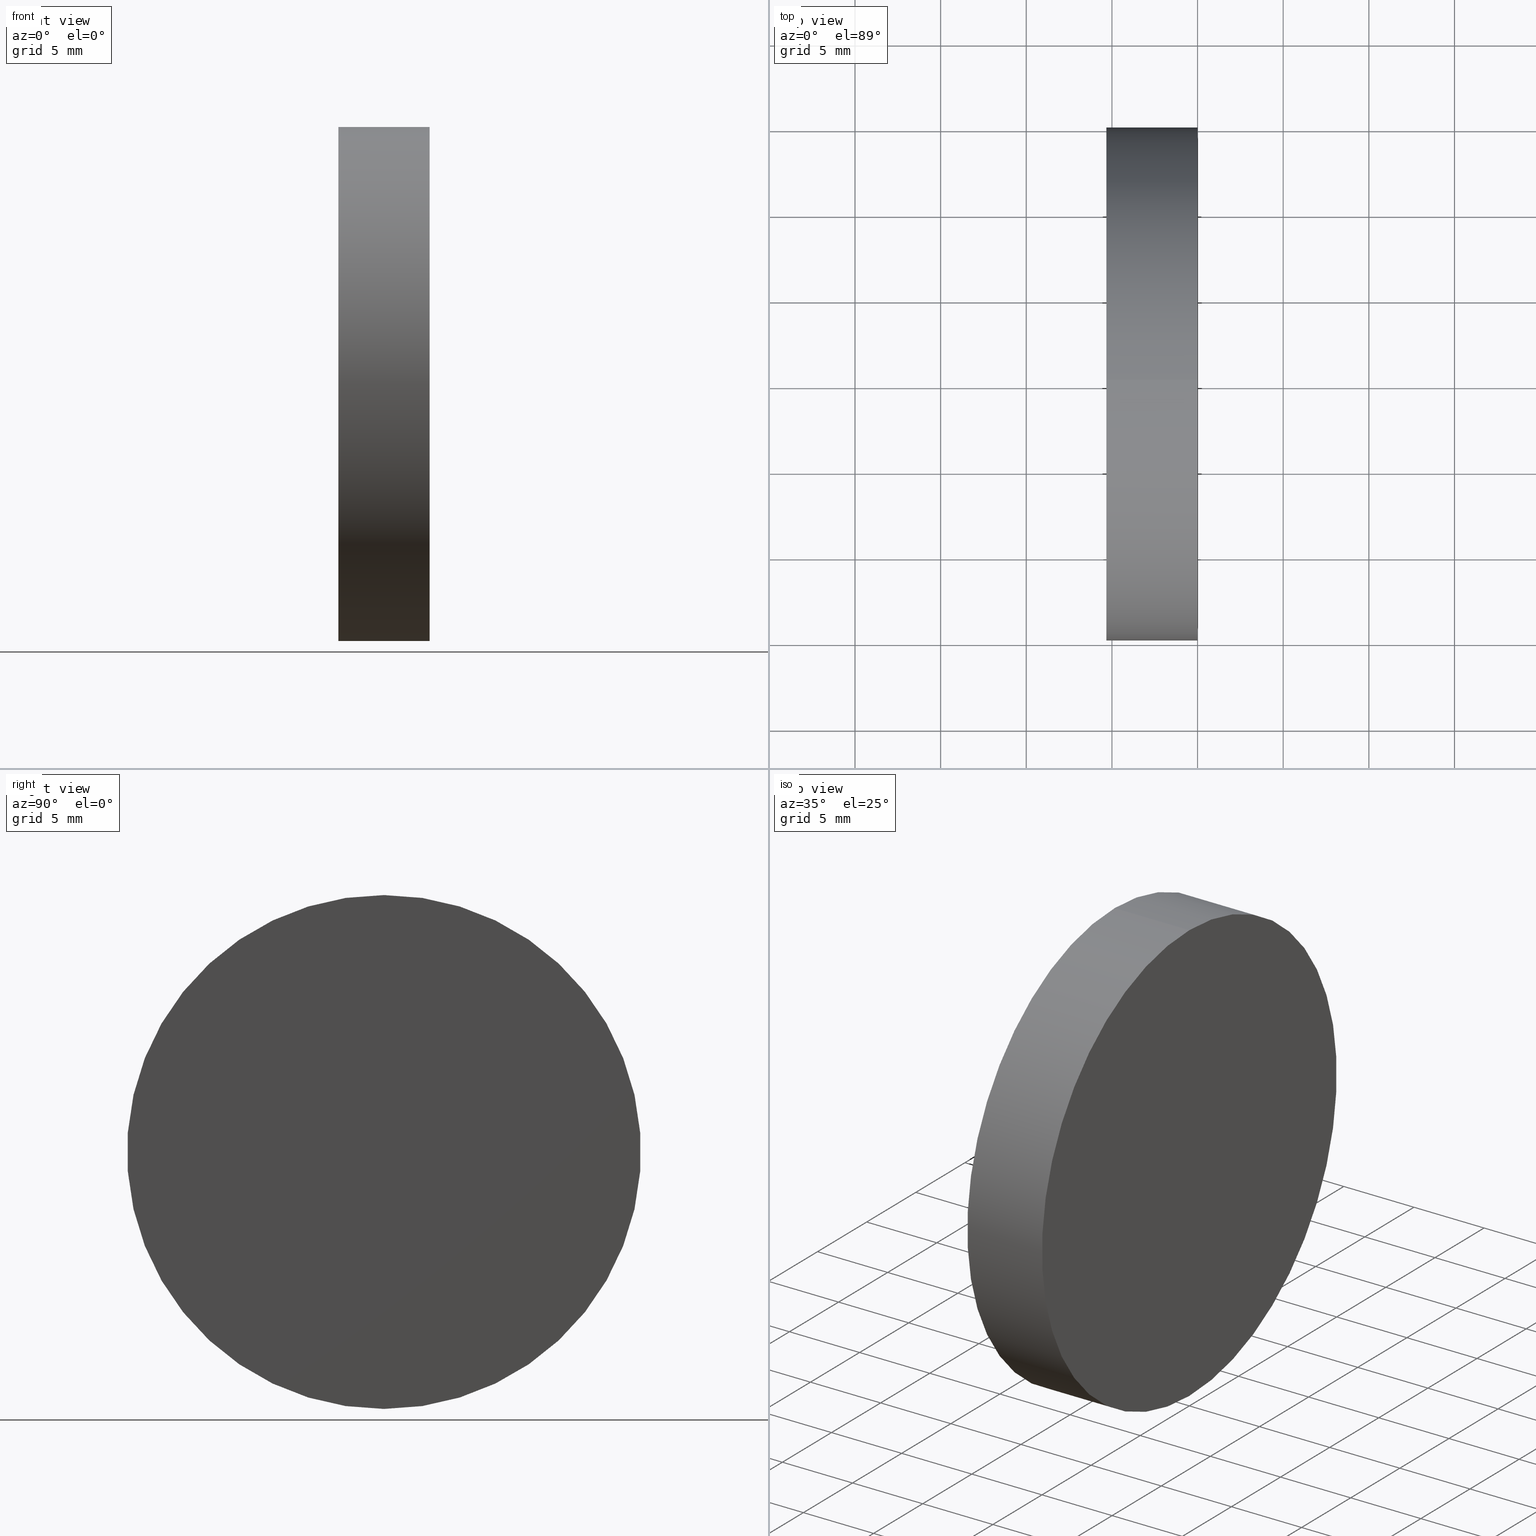
[diagram: canonical four-view strip — front | top / right | iso, engineering-drawing reading convention]
A machine part, canonical four-view strip (front | top / right | iso — engineering-drawing reading convention). The complete STEP part file that produces these views, byte-faithful:
ISO-10303-21;
HEADER;
FILE_DESCRIPTION (( 'STEP AP203' ),
    '1' );
FILE_NAME ('120355.STEP',
    '2024-05-10T06:42:19',
    ( '' ),
    ( '' ),
    'SwSTEP 2.0',
    'SolidWorks 2020',
    '' );
FILE_SCHEMA (( 'CONFIG_CONTROL_DESIGN' ));
ENDSEC;

DATA;
#1 = VERTEX_POINT ( 'NONE', #36 ) ;
#2 = DIRECTION ( 'NONE',  ( 0.000000000000000000, 0.000000000000000000, -1.000000000000000000 ) ) ;
#3 = CIRCLE ( 'NONE', #113, 15.00000000000000000 ) ;
#4 = DATE_AND_TIME ( #138, #66 ) ;
#5 = DIRECTION ( 'NONE',  ( 0.000000000000000000, 0.000000000000000000, -1.000000000000000000 ) ) ;
#6 = PERSON_AND_ORGANIZATION ( #99, #80 ) ;
#7 = EDGE_CURVE ( 'NONE', #136, #86, #122, .T. ) ;
#8 = CC_DESIGN_PERSON_AND_ORGANIZATION_ASSIGNMENT ( #116, #144, ( #13 ) ) ;
#9 = AXIS2_PLACEMENT_3D ( 'NONE', #102, #18, #48 ) ;
#10 = DATE_AND_TIME ( #161, #179 ) ;
#11 = PERSON_AND_ORGANIZATION ( #99, #80 ) ;
#12 = CALENDAR_DATE ( 2024, 10, 5 ) ;
#13 = PRODUCT_DEFINITION_FORMATION_WITH_SPECIFIED_SOURCE ( '�κ�', '', #146, .NOT_KNOWN. ) ;
#14 = TOROIDAL_SURFACE ( 'NONE', #40, 0.0006800010524396840617, 41.29999999999999005 ) ;
#15 = DIRECTION ( 'NONE',  ( 0.000000000000000000, 0.000000000000000000, -1.000000000000000000 ) ) ;
#16 = ORIENTED_EDGE ( 'NONE', *, *, #177, .T. ) ;
#17 = ADVANCED_FACE ( 'NONE', ( #185 ), #33, .T. ) ;
#18 = DIRECTION ( 'NONE',  ( 1.000000000000000000, -0.000000000000000000, -0.000000000000000000 ) ) ;
#19 = ORIENTED_EDGE ( 'NONE', *, *, #131, .F. ) ;
#20 = MANIFOLD_SOLID_BREP ( '��ת1', #67 ) ;
#21 = CARTESIAN_POINT ( 'NONE',  ( 0.000000000000000000, 0.000000000000000000, 0.000000000000000000 ) ) ;
#22 = PERSON_AND_ORGANIZATION ( #99, #80 ) ;
#23 = DIRECTION ( 'NONE',  ( 1.000000000000000000, -0.000000000000000000, -0.000000000000000000 ) ) ;
#24 = CARTESIAN_POINT ( 'NONE',  ( -5.320000000000001172, 0.000000000000000000, 0.000000000000000000 ) ) ;
#25 = APPROVAL_ROLE ( '' ) ;
#26 = LOCAL_TIME ( 14, 42, 19.00000000000000000, #49 ) ;
#27 = CC_DESIGN_PERSON_AND_ORGANIZATION_ASSIGNMENT ( #55, #41, ( #13 ) ) ;
#28 = DATE_TIME_ROLE ( 'classification_date' ) ;
#29 = EDGE_LOOP ( 'NONE', ( #134, #118 ) ) ;
#30 = SECURITY_CLASSIFICATION ( '', '', #197 ) ;
#31 = ADVANCED_FACE ( 'NONE', ( #63 ), #153, .T. ) ;
#32 = AXIS2_PLACEMENT_3D ( 'NONE', #62, #186, #181 ) ;
#33 = CYLINDRICAL_SURFACE ( 'NONE', #176, 15.00000000000000000 ) ;
#34 = DIRECTION ( 'NONE',  ( 1.000000000000000000, -0.000000000000000000, -0.000000000000000000 ) ) ;
#35 = CARTESIAN_POINT ( 'NONE',  ( -4.376196730204845672E-16, 15.00000000000000000, 0.000000000000000000 ) ) ;
#36 = CARTESIAN_POINT ( 'NONE',  ( -2.500000000000000000, 0.000000000000000000, 0.000000000000000000 ) ) ;
#37 = ORIENTED_EDGE ( 'NONE', *, *, #78, .F. ) ;
#38 = CALENDAR_DATE ( 2024, 10, 5 ) ;
#39 = PERSON_AND_ORGANIZATION_ROLE ( 'creator' ) ;
#40 = AXIS2_PLACEMENT_3D ( 'NONE', #156, #170, #5 ) ;
#41 = PERSON_AND_ORGANIZATION_ROLE ( 'creator' ) ;
#42 = ADVANCED_FACE ( 'NONE', ( #183 ), #43, .T. ) ;
#43 = CYLINDRICAL_SURFACE ( 'NONE', #70, 15.00000000000000000 ) ;
#44 = PRODUCT_RELATED_PRODUCT_CATEGORY ( 'detail', '', ( #146 ) ) ;
#45 = DIRECTION ( 'NONE',  ( 1.000000000000000000, -0.000000000000000000, -0.000000000000000000 ) ) ;
#46 = CARTESIAN_POINT ( 'NONE',  ( 0.000000000000000000, 0.000000000000000000, -15.00000000000000000 ) ) ;
#47 = DIRECTION ( 'NONE',  ( 1.000000000000000000, -0.000000000000000000, -0.000000000000000000 ) ) ;
#48 = DIRECTION ( 'NONE',  ( 0.000000000000000000, 0.000000000000000000, -1.000000000000000000 ) ) ;
#49 = COORDINATED_UNIVERSAL_TIME_OFFSET ( 8, 0, .AHEAD. ) ;
#50 = CARTESIAN_POINT ( 'NONE',  ( -8.752393460409691345E-16, 1.836970198721029589E-15, 15.00000000000000000 ) ) ;
#51 = MECHANICAL_CONTEXT ( 'NONE', #193, 'mechanical' ) ;
#52 = CC_DESIGN_PERSON_AND_ORGANIZATION_ASSIGNMENT ( #137, #39, ( #91 ) ) ;
#53 = APPROVAL_STATUS ( 'not_yet_approved' ) ;
#54 = DIRECTION ( 'NONE',  ( 0.000000000000000000, 0.000000000000000000, -1.000000000000000000 ) ) ;
#55 = PERSON_AND_ORGANIZATION ( #99, #80 ) ;
#56 = AXIS2_PLACEMENT_3D ( 'NONE', #107, #82, #106 ) ;
#57 = PERSON_AND_ORGANIZATION_ROLE ( 'classification_officer' ) ;
#58 = CC_DESIGN_APPROVAL ( #61, ( #91 ) ) ;
#59 = ORIENTED_EDGE ( 'NONE', *, *, #169, .T. ) ;
#60 = EDGE_LOOP ( 'NONE', ( #59, #112, #19, #175 ) ) ;
#61 = APPROVAL ( #53, 'δָ��' ) ;
#62 = CARTESIAN_POINT ( 'NONE',  ( -5.320000000000001172, 0.000000000000000000, 0.000000000000000000 ) ) ;
#63 = FACE_OUTER_BOUND ( 'NONE', #29, .T. ) ;
#64 = CARTESIAN_POINT ( 'NONE',  ( -8.752393460409691345E-16, 0.000000000000000000, -15.00000000000000000 ) ) ;
#65 = CALENDAR_DATE ( 2024, 10, 5 ) ;
#66 = LOCAL_TIME ( 14, 42, 19.00000000000000000, #194 ) ;
#67 = CLOSED_SHELL ( 'NONE', ( #17, #110, #187, #42, #31 ) ) ;
#68 =( LENGTH_UNIT ( ) NAMED_UNIT ( * ) SI_UNIT ( .MILLI., .METRE. ) );
#69 = DIRECTION ( 'NONE',  ( 0.000000000000000000, 0.000000000000000000, 1.000000000000000000 ) ) ;
#70 = AXIS2_PLACEMENT_3D ( 'NONE', #21, #152, #2 ) ;
#71 = COORDINATED_UNIVERSAL_TIME_OFFSET ( 8, 0, .AHEAD. ) ;
#72 = PERSON_AND_ORGANIZATION ( #99, #80 ) ;
#73 = CIRCLE ( 'NONE', #9, 15.00000000000000000 ) ;
#74 = ORIENTED_EDGE ( 'NONE', *, *, #7, .T. ) ;
#75 = LINE ( 'NONE', #46, #182 ) ;
#76 = EDGE_LOOP ( 'NONE', ( #132, #129, #16 ) ) ;
#77 = APPROVAL_PERSON_ORGANIZATION ( #11, #196, #143 ) ;
#78 = EDGE_CURVE ( 'NONE', #136, #166, #133, .T. ) ;
#79 =( NAMED_UNIT ( * ) PLANE_ANGLE_UNIT ( ) SI_UNIT ( $, .RADIAN. ) );
#80 = ORGANIZATION ( 'δָ��', 'δָ��', '' ) ;
#81 = APPROVAL ( #126, 'δָ��' ) ;
#82 = DIRECTION ( 'NONE',  ( 0.000000000000000000, 1.000000000000000000, -1.224646799147353207E-16 ) ) ;
#83 = CC_DESIGN_PERSON_AND_ORGANIZATION_ASSIGNMENT ( #22, #108, ( #146 ) ) ;
#84 = PRODUCT_DEFINITION_SHAPE ( 'NONE', 'NONE',  #91 ) ;
#85 = AXIS2_PLACEMENT_3D ( 'NONE', #124, #69, #191 ) ;
#86 = VERTEX_POINT ( 'NONE', #164 ) ;
#87 = VERTEX_POINT ( 'NONE', #64 ) ;
#88 = ORIENTED_EDGE ( 'NONE', *, *, #140, .F. ) ;
#89 = CARTESIAN_POINT ( 'NONE',  ( -8.752393460409691345E-16, 0.000000000000000000, 0.000000000000000000 ) ) ;
#90 = APPROVAL_ROLE ( '' ) ;
#91 = PRODUCT_DEFINITION ( 'δ֪', '', #13, #157 ) ;
#92 = APPLICATION_PROTOCOL_DEFINITION ( 'international standard', 'config_control_design', 1994, #163 ) ;
#93 = AXIS2_PLACEMENT_3D ( 'NONE', #105, #45, #201 ) ;
#94 = DIRECTION ( 'NONE',  ( 0.000000000000000000, 0.000000000000000000, -1.000000000000000000 ) ) ;
#95 = DATE_AND_TIME ( #65, #26 ) ;
#96 = CIRCLE ( 'NONE', #56, 41.29999999999999005 ) ;
#97 = EDGE_CURVE ( 'NONE', #86, #87, #75, .T. ) ;
#98 = COORDINATED_UNIVERSAL_TIME_OFFSET ( 8, 0, .AHEAD. ) ;
#99 = PERSON ( 'δָ��', 'δָ��', 'δָ��', ('δָ��'), ('δָ��'), ('δָ��') ) ;
#100 = CC_DESIGN_SECURITY_CLASSIFICATION ( #30, ( #13 ) ) ;
#101 = CC_DESIGN_APPROVAL ( #81, ( #13 ) ) ;
#102 = CARTESIAN_POINT ( 'NONE',  ( -8.752393460409691345E-16, 0.000000000000000000, 0.000000000000000000 ) ) ;
#103 = DIRECTION ( 'NONE',  ( -0.000000000000000000, 0.000000000000000000, -1.000000000000000000 ) ) ;
#104 =( GEOMETRIC_REPRESENTATION_CONTEXT ( 3 ) GLOBAL_UNCERTAINTY_ASSIGNED_CONTEXT ( ( #147 ) ) GLOBAL_UNIT_ASSIGNED_CONTEXT ( ( #68, #79, #160 ) ) REPRESENTATION_CONTEXT ( 'NONE', 'WORKASPACE' ) );
#105 = CARTESIAN_POINT ( 'NONE',  ( -43.79999999440191516, 0.000000000000000000, 0.000000000000000000 ) ) ;
#106 = DIRECTION ( 'NONE',  ( 0.000000000000000000, 1.224646799147353207E-16, 1.000000000000000000 ) ) ;
#107 = CARTESIAN_POINT ( 'NONE',  ( -43.79999999440191516, 8.327611122870906015E-20, 0.0006800010524396840617 ) ) ;
#108 = PERSON_AND_ORGANIZATION_ROLE ( 'design_owner' ) ;
#109 = DATE_AND_TIME ( #38, #139 ) ;
#110 = ADVANCED_FACE ( 'NONE', ( #121 ), #130, .F. ) ;
#111 = SHAPE_DEFINITION_REPRESENTATION ( #84, #184 ) ;
#112 = ORIENTED_EDGE ( 'NONE', *, *, #78, .T. ) ;
#113 = AXIS2_PLACEMENT_3D ( 'NONE', #89, #23, #54 ) ;
#114 = AXIS2_PLACEMENT_3D ( 'NONE', #189, #154, #141 ) ;
#115 = CC_DESIGN_DATE_AND_TIME_ASSIGNMENT ( #95, #158, ( #91 ) ) ;
#116 = PERSON_AND_ORGANIZATION ( #99, #80 ) ;
#117 = DIRECTION ( 'NONE',  ( 1.000000000000000000, 0.000000000000000000, -0.000000000000000000 ) ) ;
#118 = ORIENTED_EDGE ( 'NONE', *, *, #140, .T. ) ;
#119 = CIRCLE ( 'NONE', #114, 41.29999999999999005 ) ;
#120 = ORIENTED_EDGE ( 'NONE', *, *, #97, .T. ) ;
#121 = FACE_OUTER_BOUND ( 'NONE', #180, .T. ) ;
#122 = CIRCLE ( 'NONE', #32, 15.00000000000000000 ) ;
#123 = APPROVAL_DATE_TIME ( #4, #81 ) ;
#124 = CARTESIAN_POINT ( 'NONE',  ( 0.000000000000000000, 0.000000000000000000, 0.000000000000000000 ) ) ;
#125 = APPLICATION_PROTOCOL_DEFINITION ( 'international standard', 'config_control_design', 1994, #193 ) ;
#126 = APPROVAL_STATUS ( 'not_yet_approved' ) ;
#127 = APPROVAL_DATE_TIME ( #162, #196 ) ;
#128 = APPROVAL_STATUS ( 'not_yet_approved' ) ;
#129 = ORIENTED_EDGE ( 'NONE', *, *, #169, .F. ) ;
#130 = TOROIDAL_SURFACE ( 'NONE', #93, 0.0006800010524396840617, 41.29999999999999005 ) ;
#131 = EDGE_CURVE ( 'NONE', #87, #166, #73, .T. ) ;
#132 = ORIENTED_EDGE ( 'NONE', *, *, #148, .F. ) ;
#133 = LINE ( 'NONE', #165, #155 ) ;
#134 = ORIENTED_EDGE ( 'NONE', *, *, #131, .T. ) ;
#135 = ORIENTED_EDGE ( 'NONE', *, *, #177, .F. ) ;
#136 = VERTEX_POINT ( 'NONE', #168 ) ;
#137 = PERSON_AND_ORGANIZATION ( #99, #80 ) ;
#138 = CALENDAR_DATE ( 2024, 10, 5 ) ;
#139 = LOCAL_TIME ( 14, 42, 19.00000000000000000, #174 ) ;
#140 = EDGE_CURVE ( 'NONE', #166, #87, #3, .T. ) ;
#141 = DIRECTION ( 'NONE',  ( 0.000000000000000000, 0.000000000000000000, -1.000000000000000000 ) ) ;
#142 = APPROVAL_DATE_TIME ( #109, #61 ) ;
#143 = APPROVAL_ROLE ( '' ) ;
#144 = PERSON_AND_ORGANIZATION_ROLE ( 'design_supplier' ) ;
#145 = CIRCLE ( 'NONE', #167, 15.00000000000000000 ) ;
#146 = PRODUCT ( '120355', '120355', '', ( #51 ) ) ;
#147 = UNCERTAINTY_MEASURE_WITH_UNIT (LENGTH_MEASURE( 1.000000000000000082E-05 ), #68, 'distance_accuracy_value', 'NONE');
#148 = EDGE_CURVE ( 'NONE', #136, #1, #96, .T. ) ;
#149 = APPROVAL_PERSON_ORGANIZATION ( #192, #61, #25 ) ;
#150 = CC_DESIGN_DATE_AND_TIME_ASSIGNMENT ( #10, #28, ( #30 ) ) ;
#151 = ORIENTED_EDGE ( 'NONE', *, *, #7, .F. ) ;
#152 = DIRECTION ( 'NONE',  ( 1.000000000000000000, -0.000000000000000000, -0.000000000000000000 ) ) ;
#153 = PLANE ( 'NONE',  #159 ) ;
#154 = DIRECTION ( 'NONE',  ( -0.000000000000000000, -1.000000000000000000, -0.000000000000000000 ) ) ;
#155 = VECTOR ( 'NONE', #47, 1000.000000000000000 ) ;
#156 = CARTESIAN_POINT ( 'NONE',  ( -43.79999999440191516, 0.000000000000000000, 0.000000000000000000 ) ) ;
#157 = DESIGN_CONTEXT ( 'detailed design', #163, 'design' ) ;
#158 = DATE_TIME_ROLE ( 'creation_date' ) ;
#159 = AXIS2_PLACEMENT_3D ( 'NONE', #35, #117, #103 ) ;
#160 =( NAMED_UNIT ( * ) SI_UNIT ( $, .STERADIAN. ) SOLID_ANGLE_UNIT ( ) );
#161 = CALENDAR_DATE ( 2024, 10, 5 ) ;
#162 = DATE_AND_TIME ( #12, #171 ) ;
#163 = APPLICATION_CONTEXT ( 'configuration controlled 3d designs of mechanical parts and assemblies' ) ;
#164 = CARTESIAN_POINT ( 'NONE',  ( -5.320000000000000284, 0.000000000000000000, -14.99999999999998934 ) ) ;
#165 = CARTESIAN_POINT ( 'NONE',  ( 0.000000000000000000, 1.836970198721029589E-15, 15.00000000000000000 ) ) ;
#166 = VERTEX_POINT ( 'NONE', #50 ) ;
#167 = AXIS2_PLACEMENT_3D ( 'NONE', #24, #173, #94 ) ;
#168 = CARTESIAN_POINT ( 'NONE',  ( -5.320000000000000284, 1.836970198721028406E-15, 14.99999999999998934 ) ) ;
#169 = EDGE_CURVE ( 'NONE', #86, #136, #145, .T. ) ;
#170 = DIRECTION ( 'NONE',  ( 1.000000000000000000, -0.000000000000000000, -0.000000000000000000 ) ) ;
#171 = LOCAL_TIME ( 14, 42, 19.00000000000000000, #71 ) ;
#172 = FACE_OUTER_BOUND ( 'NONE', #76, .T. ) ;
#173 = DIRECTION ( 'NONE',  ( 1.000000000000000000, -0.000000000000000000, -0.000000000000000000 ) ) ;
#174 = COORDINATED_UNIVERSAL_TIME_OFFSET ( 8, 0, .AHEAD. ) ;
#175 = ORIENTED_EDGE ( 'NONE', *, *, #97, .F. ) ;
#176 = AXIS2_PLACEMENT_3D ( 'NONE', #199, #34, #15 ) ;
#177 = EDGE_CURVE ( 'NONE', #86, #1, #119, .T. ) ;
#178 = ORIENTED_EDGE ( 'NONE', *, *, #148, .T. ) ;
#179 = LOCAL_TIME ( 14, 42, 19.00000000000000000, #98 ) ;
#180 = EDGE_LOOP ( 'NONE', ( #151, #178, #135 ) ) ;
#181 = DIRECTION ( 'NONE',  ( 0.000000000000000000, 0.000000000000000000, -1.000000000000000000 ) ) ;
#182 = VECTOR ( 'NONE', #200, 1000.000000000000000 ) ;
#183 = FACE_OUTER_BOUND ( 'NONE', #198, .T. ) ;
#184 = ADVANCED_BREP_SHAPE_REPRESENTATION ( '120355', ( #20, #85 ), #104 ) ;
#185 = FACE_OUTER_BOUND ( 'NONE', #60, .T. ) ;
#186 = DIRECTION ( 'NONE',  ( 1.000000000000000000, -0.000000000000000000, -0.000000000000000000 ) ) ;
#187 = ADVANCED_FACE ( 'NONE', ( #172 ), #14, .F. ) ;
#188 = APPROVAL_PERSON_ORGANIZATION ( #6, #81, #90 ) ;
#189 = CARTESIAN_POINT ( 'NONE',  ( -43.79999999440191516, 0.000000000000000000, -0.0006800010524396840617 ) ) ;
#190 = CC_DESIGN_PERSON_AND_ORGANIZATION_ASSIGNMENT ( #72, #57, ( #30 ) ) ;
#191 = DIRECTION ( 'NONE',  ( 1.000000000000000000, 0.000000000000000000, 0.000000000000000000 ) ) ;
#192 = PERSON_AND_ORGANIZATION ( #99, #80 ) ;
#193 = APPLICATION_CONTEXT ( 'configuration controlled 3d designs of mechanical parts and assemblies' ) ;
#194 = COORDINATED_UNIVERSAL_TIME_OFFSET ( 8, 0, .AHEAD. ) ;
#195 = CC_DESIGN_APPROVAL ( #196, ( #30 ) ) ;
#196 = APPROVAL ( #128, 'δָ��' ) ;
#197 = SECURITY_CLASSIFICATION_LEVEL ( 'unclassified' ) ;
#198 = EDGE_LOOP ( 'NONE', ( #37, #74, #120, #88 ) ) ;
#199 = CARTESIAN_POINT ( 'NONE',  ( 0.000000000000000000, 0.000000000000000000, 0.000000000000000000 ) ) ;
#200 = DIRECTION ( 'NONE',  ( 1.000000000000000000, -0.000000000000000000, -0.000000000000000000 ) ) ;
#201 = DIRECTION ( 'NONE',  ( 0.000000000000000000, 0.000000000000000000, -1.000000000000000000 ) ) ;
ENDSEC;
END-ISO-10303-21;
